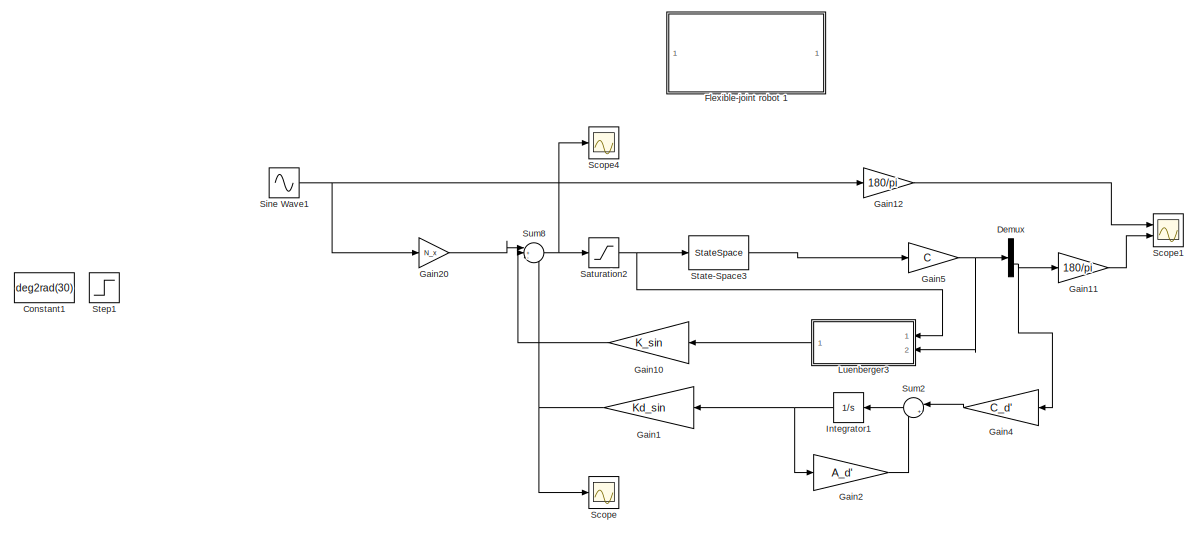
[diagram: root canvas - part 1/2, full width, top band]
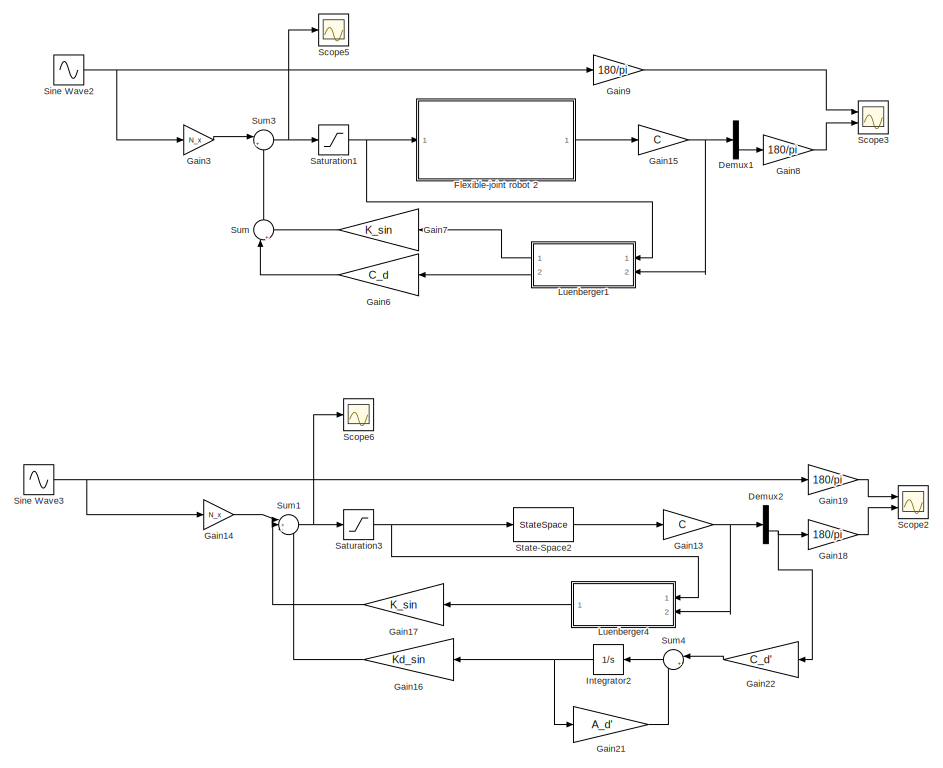
[diagram: root canvas - part 2/2, full width, bottom band]
MODEL slx_f00d56f20892
KIND model
CONFIG AbsTol = auto
CONFIG EnableMultiTasking = off
CONFIG FixedStep = auto
CONFIG MaxStep = auto
CONFIG MinStep = auto
CONFIG RelTol = 1e-3
CONFIG SampleTimeConstraint = Unconstrained
CONFIG SolverName = VariableStepAuto
CONFIG StartTime = 0.0
CONFIG StopTime = 10.0
BLOCK [Constant] Constant1
  Commented = on
  Value = deg2rad(30)
BLOCK [Demux] Demux
  Commented = on
  Outputs = 2
  Ports = [1, 2]
BLOCK [Demux] Demux1
  Commented = on
  Outputs = 2
  Ports = [1, 2]
BLOCK [Demux] Demux2
  Outputs = 2
  Ports = [1, 2]
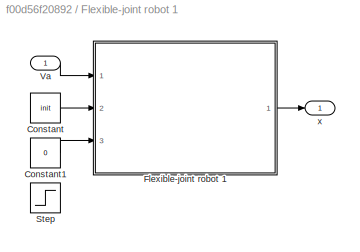
BLOCK [SubSystem] Flexible-joint robot 1
  Ports = [1, 1]
  RequestExecContextInheritance = off
BLOCK [Constant] Flexible-joint robot 1/Constant
  Value = init
BLOCK [Constant] Flexible-joint robot 1/Constant1
  Value = 0
BLOCK [ModelReference] Flexible-joint robot 1/Flexible-joint robot 1
  CopyOfModelProtected = on
  ModelNameDialog = Flexible_joint_robot_1
  ModelReferenceVersion = 1.65
  Ports = [3, 1]
BLOCK [Step] Flexible-joint robot 1/Step
  After = 0.05
  SampleTime = 0
BLOCK [Inport] Flexible-joint robot 1/Va
BLOCK [Outport] Flexible-joint robot 1/x
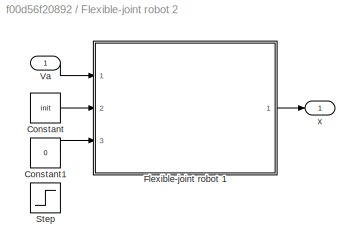
BLOCK [SubSystem] Flexible-joint robot 2
  Commented = on
  Ports = [1, 1]
  RequestExecContextInheritance = off
BLOCK [Constant] Flexible-joint robot 2/Constant
  Value = init
BLOCK [Constant] Flexible-joint robot 2/Constant1
  Value = 0
BLOCK [ModelReference] Flexible-joint robot 2/Flexible-joint robot 1
  CopyOfModelProtected = on
  ModelNameDialog = Flexible_joint_robot_1
  ModelReferenceVersion = 1.65
  Ports = [3, 1]
BLOCK [Step] Flexible-joint robot 2/Step
  After = 0.05
  SampleTime = 0
BLOCK [Inport] Flexible-joint robot 2/Va
BLOCK [Outport] Flexible-joint robot 2/x
BLOCK [Gain] Gain1
  Commented = on
  Gain = Kd_sin
  Multiplication = Matrix(K*u) (u vector)
  NameLocation = top
BLOCK [Gain] Gain10
  Commented = on
  Gain = K_sin
  Multiplication = Matrix(K*u)
  NameLocation = top
BLOCK [Gain] Gain11
  Commented = on
  Gain = 180/pi
BLOCK [Gain] Gain12
  Commented = on
  Gain = 180/pi
BLOCK [Gain] Gain13
  Gain = C
  Multiplication = Matrix(K*u)
BLOCK [Gain] Gain14
  Gain = N_x
BLOCK [Gain] Gain15
  Commented = on
  Gain = C
  Multiplication = Matrix(K*u)
BLOCK [Gain] Gain16
  Gain = Kd_sin
  Multiplication = Matrix(K*u) (u vector)
  NameLocation = top
BLOCK [Gain] Gain17
  Gain = K_sin
  Multiplication = Matrix(K*u)
  NameLocation = top
BLOCK [Gain] Gain18
  Gain = 180/pi
BLOCK [Gain] Gain19
  Gain = 180/pi
BLOCK [Gain] Gain2
  Commented = on
  Gain = A_d'
  Multiplication = Matrix(K*u) (u vector)
BLOCK [Gain] Gain20
  Commented = on
  Gain = N_x
BLOCK [Gain] Gain21
  Gain = A_d'
  Multiplication = Matrix(K*u) (u vector)
BLOCK [Gain] Gain22
  Gain = C_d'
  Multiplication = Matrix(K*u) (u vector)
  NameLocation = top
BLOCK [Gain] Gain3
  Commented = on
  Gain = N_x
BLOCK [Gain] Gain4
  Commented = on
  Gain = C_d'
  Multiplication = Matrix(K*u) (u vector)
  NameLocation = top
BLOCK [Gain] Gain5
  Commented = on
  Gain = C
  Multiplication = Matrix(K*u)
BLOCK [Gain] Gain6
  Commented = on
  Gain = C_d
  Multiplication = Matrix(K*u)
  NameLocation = top
BLOCK [Gain] Gain7
  Commented = on
  Gain = K_sin
  Multiplication = Matrix(K*u)
  NameLocation = top
BLOCK [Gain] Gain8
  Commented = on
  Gain = 180/pi
BLOCK [Gain] Gain9
  Commented = on
  Gain = 180/pi
BLOCK [Integrator] Integrator1
  Commented = on
  NameLocation = top
  Ports = [1, 1]
BLOCK [Integrator] Integrator2
  NameLocation = top
  Ports = [1, 1]
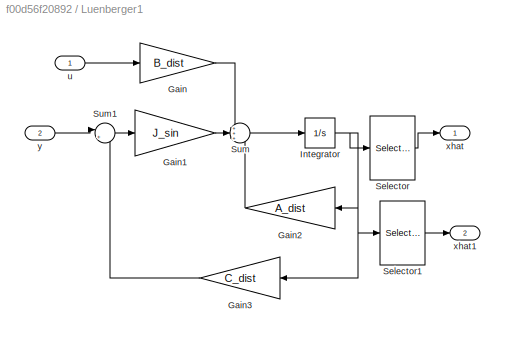
BLOCK [SubSystem] Luenberger1
  Commented = on
  NameLocation = top
  Ports = [2, 2]
  RequestExecContextInheritance = off
  TreatAsAtomicUnit = on
BLOCK [Gain] Luenberger1/Gain
  Gain = B_dist
  Multiplication = Matrix(K*u) (u vector)
BLOCK [Gain] Luenberger1/Gain1
  Gain = J_sin
  Multiplication = Matrix(K*u) (u vector)
BLOCK [Gain] Luenberger1/Gain2
  Gain = A_dist
  Multiplication = Matrix(K*u) (u vector)
  NameLocation = top
BLOCK [Gain] Luenberger1/Gain3
  Gain = C_dist
  Multiplication = Matrix(K*u) (u vector)
  NameLocation = top
BLOCK [Integrator] Luenberger1/Integrator
  Ports = [1, 1]
BLOCK [Selector] Luenberger1/Selector
  IndexOptions = Index vector (dialog)
  Indices = [1 2 3 4 5]
  InputPortWidth = 7
  OutputSizes = 1
  Ports = [1, 1]
BLOCK [Selector] Luenberger1/Selector1
  IndexOptions = Index vector (dialog)
  Indices = [6 7]
  InputPortWidth = 7
  OutputSizes = 1
  Ports = [1, 1]
BLOCK [Sum] Luenberger1/Sum
  Inputs = +++
  Ports = [3, 1]
BLOCK [Sum] Luenberger1/Sum1
  Inputs = |+-
  Ports = [2, 1]
BLOCK [Inport] Luenberger1/u
BLOCK [Outport] Luenberger1/xhat
BLOCK [Outport] Luenberger1/xhat1
  Port = 2
BLOCK [Inport] Luenberger1/y
  Port = 2
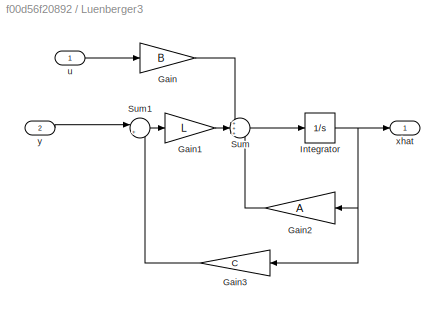
BLOCK [SubSystem] Luenberger3
  Commented = on
  NameLocation = top
  Ports = [2, 1]
  RequestExecContextInheritance = off
  TreatAsAtomicUnit = on
BLOCK [Gain] Luenberger3/Gain
  Gain = B
  Multiplication = Matrix(K*u) (u vector)
BLOCK [Gain] Luenberger3/Gain1
  Gain = L
  Multiplication = Matrix(K*u) (u vector)
BLOCK [Gain] Luenberger3/Gain2
  Gain = A
  Multiplication = Matrix(K*u) (u vector)
  NameLocation = top
BLOCK [Gain] Luenberger3/Gain3
  Gain = C
  Multiplication = Matrix(K*u) (u vector)
  NameLocation = top
BLOCK [Integrator] Luenberger3/Integrator
  Ports = [1, 1]
BLOCK [Sum] Luenberger3/Sum
  Inputs = +++
  Ports = [3, 1]
BLOCK [Sum] Luenberger3/Sum1
  Inputs = |+-
  Ports = [2, 1]
BLOCK [Inport] Luenberger3/u
BLOCK [Outport] Luenberger3/xhat
BLOCK [Inport] Luenberger3/y
  Port = 2
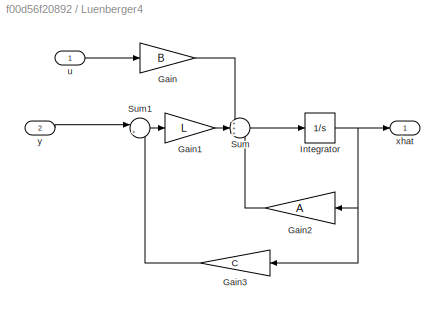
BLOCK [SubSystem] Luenberger4
  NameLocation = top
  Ports = [2, 1]
  RequestExecContextInheritance = off
  TreatAsAtomicUnit = on
BLOCK [Gain] Luenberger4/Gain
  Gain = B
  Multiplication = Matrix(K*u) (u vector)
BLOCK [Gain] Luenberger4/Gain1
  Gain = L
  Multiplication = Matrix(K*u) (u vector)
BLOCK [Gain] Luenberger4/Gain2
  Gain = A
  Multiplication = Matrix(K*u) (u vector)
  NameLocation = top
BLOCK [Gain] Luenberger4/Gain3
  Gain = C
  Multiplication = Matrix(K*u) (u vector)
  NameLocation = top
BLOCK [Integrator] Luenberger4/Integrator
  Ports = [1, 1]
BLOCK [Sum] Luenberger4/Sum
  Inputs = +++
  Ports = [3, 1]
BLOCK [Sum] Luenberger4/Sum1
  Inputs = |+-
  Ports = [2, 1]
BLOCK [Inport] Luenberger4/u
BLOCK [Outport] Luenberger4/xhat
BLOCK [Inport] Luenberger4/y
  Port = 2
BLOCK [Saturate] Saturation1
  Commented = on
  LowerLimit = -6
  UpperLimit = 6
BLOCK [Saturate] Saturation2
  Commented = on
  LowerLimit = -6
  UpperLimit = 6
BLOCK [Saturate] Saturation3
  LowerLimit = -6
  UpperLimit = 6
BLOCK [Scope] Scope
  Commented = on
  Floating = off
  NumInputPorts = 1
  Ports = [1]
  ScopeSpecificationString = Simulink.scopes.TimeScopeBlockCfg('CurrentConfiguration', extmgr.ConfigurationSet(extmgr.Configuration('Core','General UI',true),extmgr.Configuration('Core','Source UI',true),extmgr.Configuration('Sources','WiredSimulink',true,'DataLoggingVariableName','ScopeData2'),extmgr.Configuration('Visuals','Time Domain',true,'SerializedDisplays',{struct('MinYLimReal','-4609.73215','MaxYLimReal','5650.67712'...<+1430ch>
BLOCK [Scope] Scope1
  Commented = on
  Floating = off
  NumInputPorts = 2
  Ports = [2]
  ScopeSpecificationString = Simulink.scopes.TimeScopeBlockCfg('CurrentConfiguration', extmgr.ConfigurationSet(extmgr.Configuration('Core','General UI',true),extmgr.Configuration('Core','Source UI',true),extmgr.Configuration('Sources','WiredSimulink',true,'DataLoggingVariableName','ScopeData3'),extmgr.Configuration('Visuals','Time Domain',true,'SerializedDisplays',{struct('MinYLimReal','-643.21601','MaxYLimReal','653.22774','...<+1461ch>
BLOCK [Scope] Scope2
  Floating = off
  NumInputPorts = 2
  Ports = [2]
  ScopeSpecificationString = Simulink.scopes.TimeScopeBlockCfg('CurrentConfiguration', extmgr.ConfigurationSet(extmgr.Configuration('Core','General UI',true),extmgr.Configuration('Core','Source UI',true),extmgr.Configuration('Sources','WiredSimulink',true,'DataLoggingVariableName','ScopeData1'),extmgr.Configuration('Visuals','Time Domain',true,'SerializedDisplays',{struct('MinYLimReal','-46.84126','MaxYLimReal','121.91796','Y...<+1483ch>
BLOCK [Scope] Scope3
  Commented = on
  Floating = off
  NumInputPorts = 2
  Ports = [2]
  ScopeSpecificationString = Simulink.scopes.TimeScopeBlockCfg('CurrentConfiguration', extmgr.ConfigurationSet(extmgr.Configuration('Core','General UI',true),extmgr.Configuration('Core','Source UI',true),extmgr.Configuration('Sources','WiredSimulink',true,'DataLoggingVariableName','ScopeData4'),extmgr.Configuration('Visuals','Time Domain',true,'SerializedDisplays',{struct('MinYLimReal','-64.13952','MaxYLimReal','64.57664','YL...<+1451ch>
BLOCK [Scope] Scope4
  Commented = on
  Floating = off
  NumInputPorts = 1
  Ports = [1]
  ScopeSpecificationString = Simulink.scopes.TimeScopeBlockCfg('CurrentConfiguration', extmgr.ConfigurationSet(extmgr.Configuration('Core','General UI',true),extmgr.Configuration('Core','Source UI',true),extmgr.Configuration('Sources','WiredSimulink',true),extmgr.Configuration('Visuals','Time Domain',true,'SerializedDisplays',{struct('MinYLimReal','-763725.64094','MaxYLimReal','331025.55749','YLabelReal','','MinYLimMag','    ...<+1411ch>
BLOCK [Scope] Scope5
  Commented = on
  Floating = off
  NumInputPorts = 1
  Ports = [1]
  ScopeSpecificationString = Simulink.scopes.TimeScopeBlockCfg('CurrentConfiguration', extmgr.ConfigurationSet(extmgr.Configuration('Core','General UI',true),extmgr.Configuration('Core','Source UI',true),extmgr.Configuration('Sources','WiredSimulink',true,'DataLoggingVariableName','ScopeData5'),extmgr.Configuration('Visuals','Time Domain',true,'SerializedDisplays',{struct('MinYLimReal','-1026.55893','MaxYLimReal','9250.94588'...<+1434ch>
BLOCK [Scope] Scope6
  Floating = off
  NumInputPorts = 1
  Ports = [1]
  ScopeSpecificationString = Simulink.scopes.TimeScopeBlockCfg('CurrentConfiguration', extmgr.ConfigurationSet(extmgr.Configuration('Core','General UI',true),extmgr.Configuration('Core','Source UI',true),extmgr.Configuration('Sources','WiredSimulink',true,'DataLoggingVariableName','ScopeData6'),extmgr.Configuration('Visuals','Time Domain',true,'SerializedDisplays',{struct('MinYLimReal','-91.60245','MaxYLimReal','91.57456','YL...<+1418ch>
BLOCK [Sin] Sine Wave1
  Amplitude = deg2rad(30)
  Commented = on
  Frequency = w
  Phase = deg2rad(30)
  Ports = [0, 1]
  SampleTime = 0
BLOCK [Sin] Sine Wave2
  Amplitude = deg2rad(30)
  Commented = on
  Frequency = w
  Phase = deg2rad(30)
  Ports = [0, 1]
  SampleTime = 0
BLOCK [Sin] Sine Wave3
  Amplitude = deg2rad(30)
  Frequency = w
  Phase = deg2rad(30)
  Ports = [0, 1]
  SampleTime = 0
BLOCK [StateSpace] State-Space2
  A = A
  B = B
  C = eye(5)
  D = zeros(5,1)
  InitialCondition = 0
  Ports = [1, 1]
BLOCK [StateSpace] State-Space3
  A = A
  B = B
  C = eye(5)
  Commented = on
  D = zeros(5,1)
  InitialCondition = 0
  Ports = [1, 1]
BLOCK [Step] Step1
  After = deg2rad(60)
  Commented = on
  SampleTime = 0
BLOCK [Sum] Sum
  Commented = on
  Inputs = |++
  NameLocation = right
  Ports = [2, 1]
BLOCK [Sum] Sum1
  Inputs = |+--
  Ports = [3, 1]
BLOCK [Sum] Sum2
  Commented = on
  Inputs = |++
  NameLocation = top
  Ports = [2, 1]
BLOCK [Sum] Sum3
  Commented = on
  Inputs = |+-
  Ports = [2, 1]
BLOCK [Sum] Sum4
  Inputs = |++
  NameLocation = top
  Ports = [2, 1]
BLOCK [Sum] Sum8
  Commented = on
  Inputs = |+--
  Ports = [3, 1]
LINE Demux1:2 -> Gain8:1
NET Demux2:2 -> Gain18:1, Gain22:1
NET Demux:2 -> Gain11:1, Gain4:1
LINE Flexible-joint robot 1/Constant1:1 -> Flexible-joint robot 1/Flexible-joint robot 1:3
LINE Flexible-joint robot 1/Constant:1 -> Flexible-joint robot 1/Flexible-joint robot 1:2
LINE Flexible-joint robot 1/Flexible-joint robot 1:1 -> Flexible-joint robot 1/x:1
LINE Flexible-joint robot 1/Va:1 -> Flexible-joint robot 1/Flexible-joint robot 1:1
LINE Flexible-joint robot 2/Constant1:1 -> Flexible-joint robot 2/Flexible-joint robot 1:3
LINE Flexible-joint robot 2/Constant:1 -> Flexible-joint robot 2/Flexible-joint robot 1:2
LINE Flexible-joint robot 2/Flexible-joint robot 1:1 -> Flexible-joint robot 2/x:1
LINE Flexible-joint robot 2/Va:1 -> Flexible-joint robot 2/Flexible-joint robot 1:1
LINE Flexible-joint robot 2:1 -> Gain15:1
LINE Gain10:1 -> Sum8:2
LINE Gain11:1 -> Scope1:2
LINE Gain12:1 -> Scope1:1
NET Gain13:1 -> Demux2:1, Luenberger4:2
LINE Gain14:1 -> Sum1:1
NET Gain15:1 -> Demux1:1, Luenberger1:2
LINE Gain16:1 -> Sum1:3
LINE Gain17:1 -> Sum1:2
LINE Gain18:1 -> Scope2:2
LINE Gain19:1 -> Scope2:1
NET Gain1:1 -> Scope:1, Sum8:3
LINE Gain20:1 -> Sum8:1
LINE Gain21:1 -> Sum4:2
LINE Gain22:1 -> Sum4:1
LINE Gain2:1 -> Sum2:2
LINE Gain3:1 -> Sum3:1
LINE Gain4:1 -> Sum2:1
NET Gain5:1 -> Demux:1, Luenberger3:2
LINE Gain6:1 -> Sum:1
LINE Gain7:1 -> Sum:2
LINE Gain8:1 -> Scope3:2
LINE Gain9:1 -> Scope3:1
NET Integrator1:1 -> Gain1:1, Gain2:1
NET Integrator2:1 -> Gain16:1, Gain21:1
LINE Luenberger1/Gain1:1 -> Luenberger1/Sum:2
LINE Luenberger1/Gain2:1 -> Luenberger1/Sum:3
LINE Luenberger1/Gain3:1 -> Luenberger1/Sum1:2
LINE Luenberger1/Gain:1 -> Luenberger1/Sum:1
NET Luenberger1/Integrator:1 -> Luenberger1/Gain2:1, Luenberger1/Gain3:1, Luenberger1/Selector1:1, Luenberger1/Selector:1
LINE Luenberger1/Selector1:1 -> Luenberger1/xhat1:1
LINE Luenberger1/Selector:1 -> Luenberger1/xhat:1
LINE Luenberger1/Sum1:1 -> Luenberger1/Gain1:1
LINE Luenberger1/Sum:1 -> Luenberger1/Integrator:1
LINE Luenberger1/u:1 -> Luenberger1/Gain:1
LINE Luenberger1/y:1 -> Luenberger1/Sum1:1
LINE Luenberger1:1 -> Gain7:1
LINE Luenberger1:2 -> Gain6:1
LINE Luenberger3/Gain1:1 -> Luenberger3/Sum:2
LINE Luenberger3/Gain2:1 -> Luenberger3/Sum:3
LINE Luenberger3/Gain3:1 -> Luenberger3/Sum1:2
LINE Luenberger3/Gain:1 -> Luenberger3/Sum:1
NET Luenberger3/Integrator:1 -> Luenberger3/Gain2:1, Luenberger3/Gain3:1, Luenberger3/xhat:1
LINE Luenberger3/Sum1:1 -> Luenberger3/Gain1:1
LINE Luenberger3/Sum:1 -> Luenberger3/Integrator:1
LINE Luenberger3/u:1 -> Luenberger3/Gain:1
LINE Luenberger3/y:1 -> Luenberger3/Sum1:1
LINE Luenberger3:1 -> Gain10:1
LINE Luenberger4/Gain1:1 -> Luenberger4/Sum:2
LINE Luenberger4/Gain2:1 -> Luenberger4/Sum:3
LINE Luenberger4/Gain3:1 -> Luenberger4/Sum1:2
LINE Luenberger4/Gain:1 -> Luenberger4/Sum:1
NET Luenberger4/Integrator:1 -> Luenberger4/Gain2:1, Luenberger4/Gain3:1, Luenberger4/xhat:1
LINE Luenberger4/Sum1:1 -> Luenberger4/Gain1:1
LINE Luenberger4/Sum:1 -> Luenberger4/Integrator:1
LINE Luenberger4/u:1 -> Luenberger4/Gain:1
LINE Luenberger4/y:1 -> Luenberger4/Sum1:1
LINE Luenberger4:1 -> Gain17:1
NET Saturation1:1 -> Flexible-joint robot 2:1, Luenberger1:1
NET Saturation2:1 -> Luenberger3:1, State-Space3:1
NET Saturation3:1 -> Luenberger4:1, State-Space2:1
NET Sine Wave1:1 -> Gain12:1, Gain20:1
NET Sine Wave2:1 -> Gain3:1, Gain9:1
NET Sine Wave3:1 -> Gain14:1, Gain19:1
LINE State-Space2:1 -> Gain13:1
LINE State-Space3:1 -> Gain5:1
NET Sum1:1 -> Saturation3:1, Scope6:1
LINE Sum2:1 -> Integrator1:1
NET Sum3:1 -> Saturation1:1, Scope5:1
LINE Sum4:1 -> Integrator2:1
NET Sum8:1 -> Saturation2:1, Scope4:1
LINE Sum:1 -> Sum3:2
note: NET lines group one-source signal fan-out (src -> all destinations, sorted); 1:1 wires keep LINE
